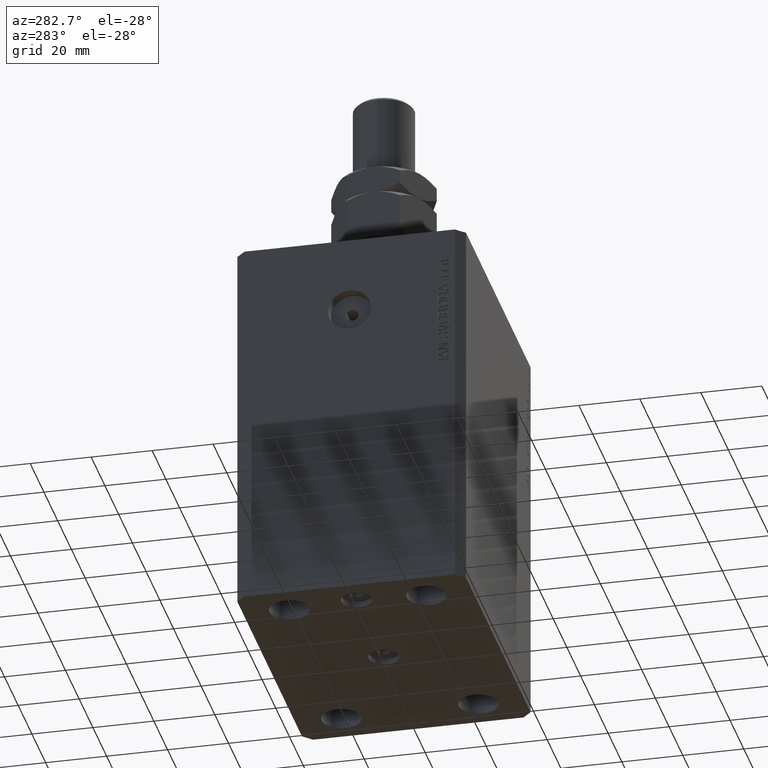
[diagram: clean part render]
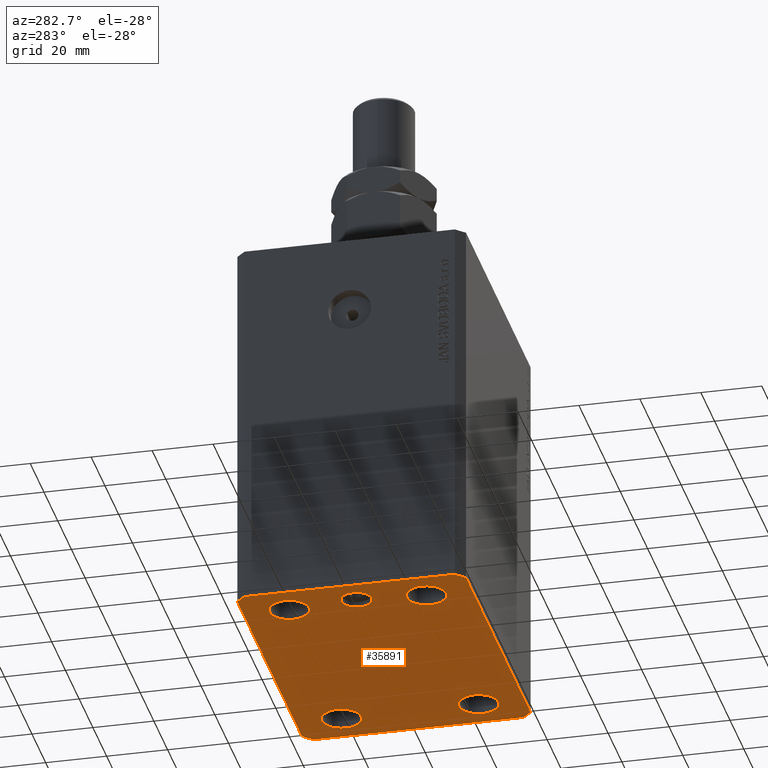
[diagram: same view with one face highlighted and labeled with its STEP entity id]
A machine part, auxiliary view. The second image highlights one B-rep face of the part: STEP entity #35891.
In plain terms, the highlighted planar face has unit normal (0, 0, 1).
Its self-contained STEP definition (entity closure, byte-faithful):
#249 = ORIENTED_EDGE ( 'NONE', *, *, #8869, .F. ) ;
#725 = DIRECTION ( 'NONE',  ( 1.000000000000000000, 0.000000000000000000, 0.000000000000000000 ) ) ;
#903 = CARTESIAN_POINT ( 'NONE',  ( 47.00000000000000000, -37.50000000000000711, -125.0000000000000000 ) ) ;
#964 = AXIS2_PLACEMENT_3D ( 'NONE', #31545, #28078, #6107 ) ;
#984 = EDGE_CURVE ( 'NONE', #26321, #31486, #13980, .T. ) ;
#1088 = VERTEX_POINT ( 'NONE', #43745 ) ;
#1154 = EDGE_CURVE ( 'NONE', #27994, #19483, #37824, .T. ) ;
#1240 = CARTESIAN_POINT ( 'NONE',  ( -40.00000000000000000, 0.000000000000000000, -125.0000000000000000 ) ) ;
#1939 = CARTESIAN_POINT ( 'NONE',  ( 50.00000000000000000, -34.50000000000000711, -125.0000000000000000 ) ) ;
#2439 = CIRCLE ( 'NONE', #19637, 6.499999999999999112 ) ;
#2520 = ORIENTED_EDGE ( 'NONE', *, *, #32967, .F. ) ;
#2547 = VECTOR ( 'NONE', #9397, 1000.000000000000000 ) ;
#3081 = CARTESIAN_POINT ( 'NONE',  ( 38.00000000000000000, 22.49999999999998934, -125.0000000000000000 ) ) ;
#3114 = DIRECTION ( 'NONE',  ( 1.000000000000000000, 0.000000000000000000, 0.000000000000000000 ) ) ;
#3277 = CIRCLE ( 'NONE', #18984, 6.499999999999999112 ) ;
#3407 = FACE_OUTER_BOUND ( 'NONE', #35338, .T. ) ;
#3646 = VERTEX_POINT ( 'NONE', #4461 ) ;
#3904 = DIRECTION ( 'NONE',  ( 1.000000000000000000, -1.476360405086644309E-16, 0.000000000000000000 ) ) ;
#4047 = CARTESIAN_POINT ( 'NONE',  ( 47.00000000000056843, 37.49999999999999289, -125.0000000000000000 ) ) ;
#4084 = DIRECTION ( 'NONE',  ( 1.000000000000000000, 0.000000000000000000, 0.000000000000000000 ) ) ;
#4256 = CARTESIAN_POINT ( 'NONE',  ( -47.00000000000001421, 37.50000000000000000, -125.0000000000000000 ) ) ;
#4301 = VECTOR ( 'NONE', #15772, 1000.000000000000114 ) ;
#4431 = CARTESIAN_POINT ( 'NONE',  ( 0.000000000000000000, 0.000000000000000000, -125.0000000000000000 ) ) ;
#4461 = CARTESIAN_POINT ( 'NONE',  ( -47.00000000000001421, 37.50000000000000000, -125.0000000000000000 ) ) ;
#4467 = DIRECTION ( 'NONE',  ( -0.000000000000000000, -0.000000000000000000, -1.000000000000000000 ) ) ;
#5002 = VERTEX_POINT ( 'NONE', #12443 ) ;
#6002 = EDGE_LOOP ( 'NONE', ( #44665, #42896 ) ) ;
#6107 = DIRECTION ( 'NONE',  ( 1.000000000000000000, 0.000000000000000000, 0.000000000000000000 ) ) ;
#6374 = DIRECTION ( 'NONE',  ( 1.000000000000000000, 0.000000000000000000, 0.000000000000000000 ) ) ;
#6647 = EDGE_CURVE ( 'NONE', #31914, #9548, #25850, .T. ) ;
#6752 = EDGE_CURVE ( 'NONE', #38674, #3646, #19753, .T. ) ;
#6797 = EDGE_LOOP ( 'NONE', ( #249, #38189 ) ) ;
#6925 = CIRCLE ( 'NONE', #964, 6.499999999999999112 ) ;
#7063 = VECTOR ( 'NONE', #28364, 1000.000000000000000 ) ;
#7430 = LINE ( 'NONE', #35179, #22564 ) ;
#7766 = ORIENTED_EDGE ( 'NONE', *, *, #18718, .F. ) ;
#7851 = CARTESIAN_POINT ( 'NONE',  ( -50.00000000000000000, -34.50000000000000000, -125.0000000000000000 ) ) ;
#8015 = AXIS2_PLACEMENT_3D ( 'NONE', #42118, #20883, #3114 ) ;
#8053 = CARTESIAN_POINT ( 'NONE',  ( 0.000000000000000000, 0.000000000000000000, -125.0000000000000000 ) ) ;
#8062 = DIRECTION ( 'NONE',  ( -0.000000000000000000, -0.000000000000000000, -1.000000000000000000 ) ) ;
#8678 = EDGE_LOOP ( 'NONE', ( #28913, #35243 ) ) ;
#8869 = EDGE_CURVE ( 'NONE', #45569, #31036, #32703, .T. ) ;
#9106 = CARTESIAN_POINT ( 'NONE',  ( 47.00000000000000000, -37.50000000000000711, -125.0000000000000000 ) ) ;
#9230 = AXIS2_PLACEMENT_3D ( 'NONE', #45014, #24008, #41048 ) ;
#9397 = DIRECTION ( 'NONE',  ( 2.011273595335428326E-16, -1.000000000000000000, 0.000000000000000000 ) ) ;
#9548 = VERTEX_POINT ( 'NONE', #34436 ) ;
#10113 = VERTEX_POINT ( 'NONE', #34284 ) ;
#10179 = DIRECTION ( 'NONE',  ( -0.000000000000000000, -0.000000000000000000, -1.000000000000000000 ) ) ;
#10289 = CARTESIAN_POINT ( 'NONE',  ( -31.49999999999999289, -22.50000000000000000, -125.0000000000000000 ) ) ;
#10772 = CARTESIAN_POINT ( 'NONE',  ( 44.50000000000000000, 22.49999999999998934, -125.0000000000000000 ) ) ;
#10867 = CARTESIAN_POINT ( 'NONE',  ( 38.00000000000000000, 22.49999999999998934, -125.0000000000000000 ) ) ;
#11311 = EDGE_CURVE ( 'NONE', #1088, #5002, #32005, .T. ) ;
#12216 = ORIENTED_EDGE ( 'NONE', *, *, #21157, .F. ) ;
#12443 = CARTESIAN_POINT ( 'NONE',  ( 5.000000000000000000, 6.123233995736765296E-16, -125.0000000000000000 ) ) ;
#12483 = CARTESIAN_POINT ( 'NONE',  ( 47.00000000000056843, 37.49999999999999289, -125.0000000000000000 ) ) ;
#13062 = ORIENTED_EDGE ( 'NONE', *, *, #26763, .F. ) ;
#13224 = ORIENTED_EDGE ( 'NONE', *, *, #6647, .F. ) ;
#13233 = FACE_BOUND ( 'NONE', #40699, .T. ) ;
#13277 = VECTOR ( 'NONE', #41159, 1000.000000000000000 ) ;
#13453 = CARTESIAN_POINT ( 'NONE',  ( 44.49999999999999289, -22.50000000000000000, -125.0000000000000000 ) ) ;
#13703 = DIRECTION ( 'NONE',  ( 0.000000000000000000, 0.000000000000000000, 1.000000000000000000 ) ) ;
#13980 = CIRCLE ( 'NONE', #8015, 6.499999999999999112 ) ;
#14179 = EDGE_CURVE ( 'NONE', #28011, #34793, #25457, .T. ) ;
#14206 = ORIENTED_EDGE ( 'NONE', *, *, #19573, .F. ) ;
#14554 = CIRCLE ( 'NONE', #41369, 5.000000000000000000 ) ;
#14662 = CARTESIAN_POINT ( 'NONE',  ( 50.00000000000051870, 34.49999999999995026, -125.0000000000000000 ) ) ;
#14805 = AXIS2_PLACEMENT_3D ( 'NONE', #18747, #4467, #43006 ) ;
#15135 = DIRECTION ( 'NONE',  ( -0.7071067811865361374, 0.7071067811865588970, 0.000000000000000000 ) ) ;
#15523 = CIRCLE ( 'NONE', #41592, 6.499999999999999112 ) ;
#15772 = DIRECTION ( 'NONE',  ( 0.7071067811865491270, -0.7071067811865459074, 0.000000000000000000 ) ) ;
#15826 = AXIS2_PLACEMENT_3D ( 'NONE', #18491, #32704, #725 ) ;
#15926 = CIRCLE ( 'NONE', #9230, 4.999999999999997335 ) ;
#16278 = ORIENTED_EDGE ( 'NONE', *, *, #44382, .F. ) ;
#16289 = CARTESIAN_POINT ( 'NONE',  ( -50.00000000000000000, -34.50000000000000000, -125.0000000000000000 ) ) ;
#16989 = FACE_BOUND ( 'NONE', #40946, .T. ) ;
#17196 = CARTESIAN_POINT ( 'NONE',  ( -31.50000000000000000, 22.49999999999999645, -125.0000000000000000 ) ) ;
#17611 = CARTESIAN_POINT ( 'NONE',  ( -44.49999999999999289, -22.50000000000000000, -125.0000000000000000 ) ) ;
#17728 = AXIS2_PLACEMENT_3D ( 'NONE', #1240, #29748, #43968 ) ;
#18491 = CARTESIAN_POINT ( 'NONE',  ( -38.00000000000000000, 22.49999999999999645, -125.0000000000000000 ) ) ;
#18718 = EDGE_CURVE ( 'NONE', #9548, #28011, #7430, .T. ) ;
#18747 = CARTESIAN_POINT ( 'NONE',  ( -37.99999999999999289, -22.50000000000000000, -125.0000000000000000 ) ) ;
#18831 = EDGE_CURVE ( 'NONE', #31486, #26321, #28538, .T. ) ;
#18888 = LINE ( 'NONE', #14662, #29296 ) ;
#18984 = AXIS2_PLACEMENT_3D ( 'NONE', #28182, #10179, #34893 ) ;
#19008 = VERTEX_POINT ( 'NONE', #17196 ) ;
#19483 = VERTEX_POINT ( 'NONE', #22145 ) ;
#19573 = EDGE_CURVE ( 'NONE', #45004, #38674, #18888, .T. ) ;
#19637 = AXIS2_PLACEMENT_3D ( 'NONE', #10867, #8062, #4084 ) ;
#19753 = LINE ( 'NONE', #12483, #34128 ) ;
#19973 = DIRECTION ( 'NONE',  ( -1.000000000000000000, 7.381802025433175941E-17, 0.000000000000000000 ) ) ;
#20358 = ORIENTED_EDGE ( 'NONE', *, *, #14179, .F. ) ;
#20452 = VERTEX_POINT ( 'NONE', #23362 ) ;
#20493 = FACE_BOUND ( 'NONE', #6797, .T. ) ;
#20883 = DIRECTION ( 'NONE',  ( -0.000000000000000000, -0.000000000000000000, -1.000000000000000000 ) ) ;
#21157 = EDGE_CURVE ( 'NONE', #20452, #31914, #30656, .T. ) ;
#22031 = LINE ( 'NONE', #4256, #7063 ) ;
#22145 = CARTESIAN_POINT ( 'NONE',  ( -35.00000000000000000, 6.123233995736762338E-16, -125.0000000000000000 ) ) ;
#22564 = VECTOR ( 'NONE', #3904, 1000.000000000000000 ) ;
#22994 = ORIENTED_EDGE ( 'NONE', *, *, #30880, .F. ) ;
#23136 = ORIENTED_EDGE ( 'NONE', *, *, #44357, .F. ) ;
#23362 = CARTESIAN_POINT ( 'NONE',  ( -50.00000000000001421, 34.50000000000000000, -125.0000000000000000 ) ) ;
#23396 = VERTEX_POINT ( 'NONE', #35553 ) ;
#24008 = DIRECTION ( 'NONE',  ( 0.000000000000000000, 0.000000000000000000, -1.000000000000000000 ) ) ;
#25373 = EDGE_CURVE ( 'NONE', #19008, #10113, #3277, .T. ) ;
#25457 = LINE ( 'NONE', #903, #36533 ) ;
#25609 = DIRECTION ( 'NONE',  ( 0.000000000000000000, 0.000000000000000000, -1.000000000000000000 ) ) ;
#25850 = LINE ( 'NONE', #7851, #4301 ) ;
#26279 = EDGE_LOOP ( 'NONE', ( #42056, #39404 ) ) ;
#26321 = VERTEX_POINT ( 'NONE', #13453 ) ;
#26500 = LINE ( 'NONE', #1939, #13277 ) ;
#26763 = EDGE_CURVE ( 'NONE', #3646, #20452, #22031, .T. ) ;
#26813 = DIRECTION ( 'NONE',  ( 1.000000000000000000, 0.000000000000000000, 0.000000000000000000 ) ) ;
#27268 = CARTESIAN_POINT ( 'NONE',  ( 37.99999999999999289, -22.50000000000000000, -125.0000000000000000 ) ) ;
#27415 = DIRECTION ( 'NONE',  ( -0.000000000000000000, -0.000000000000000000, -1.000000000000000000 ) ) ;
#27650 = EDGE_CURVE ( 'NONE', #5002, #1088, #14554, .T. ) ;
#27994 = VERTEX_POINT ( 'NONE', #38243 ) ;
#28011 = VERTEX_POINT ( 'NONE', #9106 ) ;
#28078 = DIRECTION ( 'NONE',  ( -0.000000000000000000, -0.000000000000000000, -1.000000000000000000 ) ) ;
#28182 = CARTESIAN_POINT ( 'NONE',  ( -38.00000000000000000, 22.49999999999999645, -125.0000000000000000 ) ) ;
#28213 = CARTESIAN_POINT ( 'NONE',  ( 0.000000000000000000, 0.000000000000000000, -125.0000000000000000 ) ) ;
#28364 = DIRECTION ( 'NONE',  ( -0.7071067811865483499, -0.7071067811865466846, 0.000000000000000000 ) ) ;
#28538 = CIRCLE ( 'NONE', #35940, 6.499999999999999112 ) ;
#28913 = ORIENTED_EDGE ( 'NONE', *, *, #25373, .F. ) ;
#29296 = VECTOR ( 'NONE', #15135, 1000.000000000000114 ) ;
#29748 = DIRECTION ( 'NONE',  ( 0.000000000000000000, 0.000000000000000000, -1.000000000000000000 ) ) ;
#29952 = CARTESIAN_POINT ( 'NONE',  ( 50.00000000000000000, -34.50000000000000711, -125.0000000000000000 ) ) ;
#29967 = CARTESIAN_POINT ( 'NONE',  ( -50.00000000000001421, 34.50000000000000000, -125.0000000000000000 ) ) ;
#30462 = EDGE_CURVE ( 'NONE', #31036, #45569, #6925, .T. ) ;
#30656 = LINE ( 'NONE', #29967, #2547 ) ;
#30744 = DIRECTION ( 'NONE',  ( -0.000000000000000000, -0.000000000000000000, -1.000000000000000000 ) ) ;
#30880 = EDGE_CURVE ( 'NONE', #23396, #41807, #2439, .T. ) ;
#30998 = DIRECTION ( 'NONE',  ( 1.000000000000000000, 0.000000000000000000, -0.000000000000000000 ) ) ;
#31036 = VERTEX_POINT ( 'NONE', #17611 ) ;
#31486 = VERTEX_POINT ( 'NONE', #32233 ) ;
#31545 = CARTESIAN_POINT ( 'NONE',  ( -37.99999999999999289, -22.50000000000000000, -125.0000000000000000 ) ) ;
#31914 = VERTEX_POINT ( 'NONE', #16289 ) ;
#32005 = CIRCLE ( 'NONE', #39461, 5.000000000000000000 ) ;
#32233 = CARTESIAN_POINT ( 'NONE',  ( 31.49999999999999289, -22.50000000000000000, -125.0000000000000000 ) ) ;
#32703 = CIRCLE ( 'NONE', #14805, 6.499999999999999112 ) ;
#32704 = DIRECTION ( 'NONE',  ( -0.000000000000000000, -0.000000000000000000, -1.000000000000000000 ) ) ;
#32967 = EDGE_CURVE ( 'NONE', #19483, #27994, #15926, .T. ) ;
#34128 = VECTOR ( 'NONE', #19973, 1000.000000000000000 ) ;
#34284 = CARTESIAN_POINT ( 'NONE',  ( -44.50000000000000000, 22.49999999999999645, -125.0000000000000000 ) ) ;
#34436 = CARTESIAN_POINT ( 'NONE',  ( -47.00000000000000000, -37.49999999999999289, -125.0000000000000000 ) ) ;
#34699 = FACE_BOUND ( 'NONE', #6002, .T. ) ;
#34793 = VERTEX_POINT ( 'NONE', #29952 ) ;
#34893 = DIRECTION ( 'NONE',  ( 1.000000000000000000, 0.000000000000000000, 0.000000000000000000 ) ) ;
#35179 = CARTESIAN_POINT ( 'NONE',  ( -47.00000000000000000, -37.49999999999999289, -125.0000000000000000 ) ) ;
#35243 = ORIENTED_EDGE ( 'NONE', *, *, #40707, .F. ) ;
#35338 = EDGE_LOOP ( 'NONE', ( #38994, #14206, #23136, #20358, #7766, #13224, #12216, #13062 ) ) ;
#35382 = PLANE ( 'NONE',  #38780 ) ;
#35553 = CARTESIAN_POINT ( 'NONE',  ( 31.50000000000000000, 22.49999999999998934, -125.0000000000000000 ) ) ;
#35891 = ADVANCED_FACE ( 'NONE', ( #38670, #13233, #20493, #34699, #16989, #37972, #3407 ), #35382, .F. ) ;
#35940 = AXIS2_PLACEMENT_3D ( 'NONE', #27268, #30744, #26813 ) ;
#36533 = VECTOR ( 'NONE', #43165, 1000.000000000000000 ) ;
#36856 = DIRECTION ( 'NONE',  ( 0.000000000000000000, 0.000000000000000000, -1.000000000000000000 ) ) ;
#37088 = DIRECTION ( 'NONE',  ( -1.000000000000000000, 0.000000000000000000, 0.000000000000000000 ) ) ;
#37824 = CIRCLE ( 'NONE', #17728, 4.999999999999997335 ) ;
#37972 = FACE_BOUND ( 'NONE', #8678, .T. ) ;
#38189 = ORIENTED_EDGE ( 'NONE', *, *, #30462, .F. ) ;
#38243 = CARTESIAN_POINT ( 'NONE',  ( -45.00000000000000000, 0.000000000000000000, -125.0000000000000000 ) ) ;
#38570 = ORIENTED_EDGE ( 'NONE', *, *, #1154, .F. ) ;
#38670 = FACE_BOUND ( 'NONE', #26279, .T. ) ;
#38674 = VERTEX_POINT ( 'NONE', #4047 ) ;
#38780 = AXIS2_PLACEMENT_3D ( 'NONE', #28213, #13703, #30998 ) ;
#38994 = ORIENTED_EDGE ( 'NONE', *, *, #6752, .F. ) ;
#39102 = DIRECTION ( 'NONE',  ( -1.000000000000000000, 0.000000000000000000, 0.000000000000000000 ) ) ;
#39404 = ORIENTED_EDGE ( 'NONE', *, *, #27650, .F. ) ;
#39461 = AXIS2_PLACEMENT_3D ( 'NONE', #4431, #36856, #37088 ) ;
#40699 = EDGE_LOOP ( 'NONE', ( #38570, #2520 ) ) ;
#40707 = EDGE_CURVE ( 'NONE', #10113, #19008, #41178, .T. ) ;
#40946 = EDGE_LOOP ( 'NONE', ( #16278, #22994 ) ) ;
#41048 = DIRECTION ( 'NONE',  ( -1.000000000000000000, 0.000000000000000000, 0.000000000000000000 ) ) ;
#41159 = DIRECTION ( 'NONE',  ( 7.441712302741091634E-15, 1.000000000000000000, 0.000000000000000000 ) ) ;
#41178 = CIRCLE ( 'NONE', #15826, 6.499999999999999112 ) ;
#41369 = AXIS2_PLACEMENT_3D ( 'NONE', #8053, #25609, #39102 ) ;
#41592 = AXIS2_PLACEMENT_3D ( 'NONE', #3081, #27415, #6374 ) ;
#41738 = CARTESIAN_POINT ( 'NONE',  ( 50.00000000000051870, 34.49999999999995026, -125.0000000000000000 ) ) ;
#41807 = VERTEX_POINT ( 'NONE', #10772 ) ;
#42056 = ORIENTED_EDGE ( 'NONE', *, *, #11311, .F. ) ;
#42118 = CARTESIAN_POINT ( 'NONE',  ( 37.99999999999999289, -22.50000000000000000, -125.0000000000000000 ) ) ;
#42896 = ORIENTED_EDGE ( 'NONE', *, *, #18831, .F. ) ;
#43006 = DIRECTION ( 'NONE',  ( 1.000000000000000000, 0.000000000000000000, 0.000000000000000000 ) ) ;
#43165 = DIRECTION ( 'NONE',  ( 0.7071067811865483499, 0.7071067811865466846, 0.000000000000000000 ) ) ;
#43745 = CARTESIAN_POINT ( 'NONE',  ( -5.000000000000000000, 0.000000000000000000, -125.0000000000000000 ) ) ;
#43968 = DIRECTION ( 'NONE',  ( -1.000000000000000000, 0.000000000000000000, 0.000000000000000000 ) ) ;
#44357 = EDGE_CURVE ( 'NONE', #34793, #45004, #26500, .T. ) ;
#44382 = EDGE_CURVE ( 'NONE', #41807, #23396, #15523, .T. ) ;
#44665 = ORIENTED_EDGE ( 'NONE', *, *, #984, .F. ) ;
#45004 = VERTEX_POINT ( 'NONE', #41738 ) ;
#45014 = CARTESIAN_POINT ( 'NONE',  ( -40.00000000000000000, 0.000000000000000000, -125.0000000000000000 ) ) ;
#45569 = VERTEX_POINT ( 'NONE', #10289 ) ;